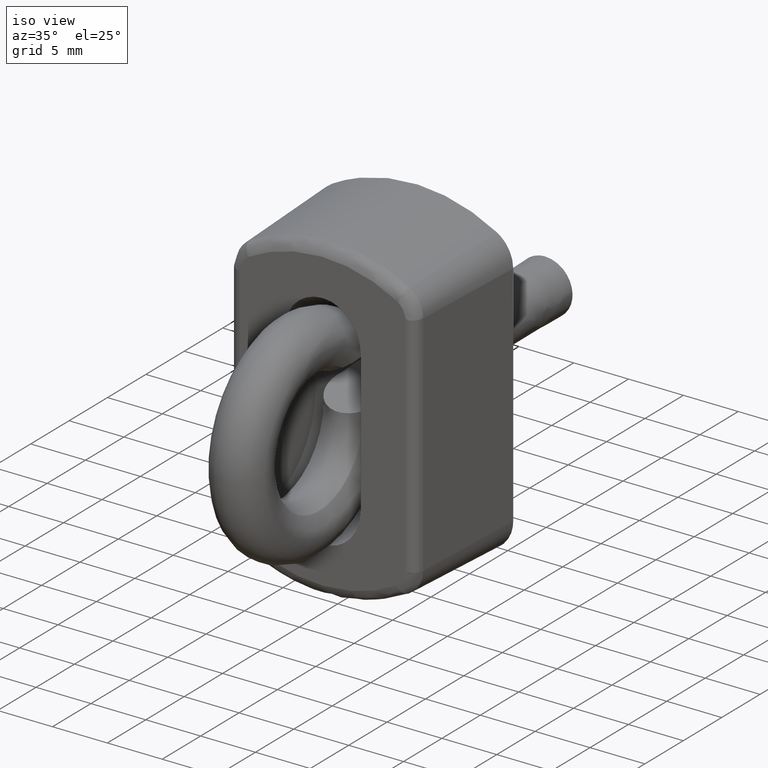
[diagram: clean part render]
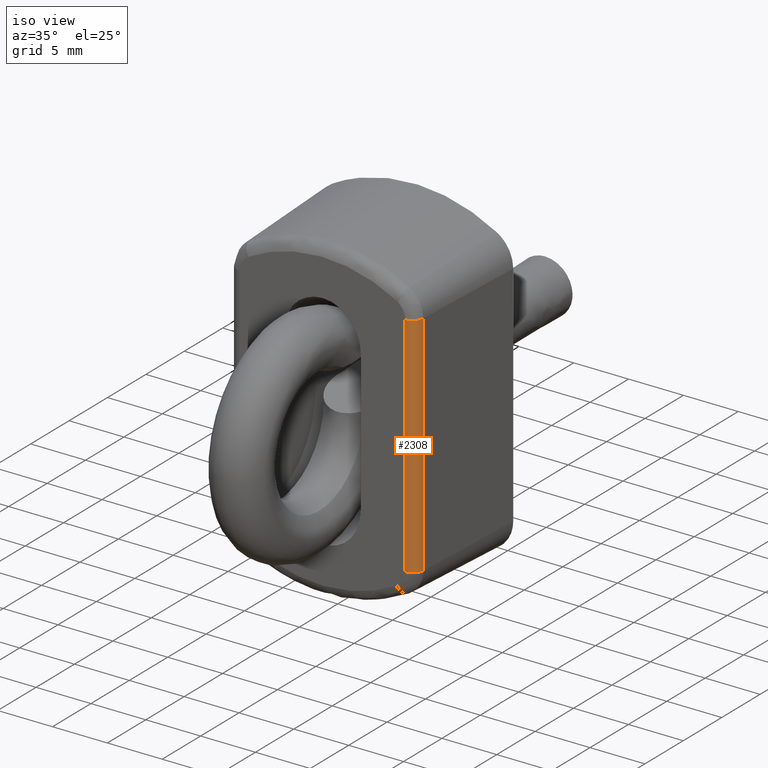
[diagram: same view with one face highlighted and labeled with its STEP entity id]
A machine part, iso view. The second image highlights one B-rep face of the part: STEP entity #2308.
In plain terms, the highlighted face is a freeform B-spline surface patch.
Its self-contained STEP definition (entity closure, byte-faithful):
#2218=CARTESIAN_POINT('',(10.392303999999999,8.539931996033269,-3.958369525570390));
#2219=VERTEX_POINT('',#2218);
#2233=CARTESIAN_POINT('',(10.392303999999999,7.540798920012490,-3.0));
#2234=VERTEX_POINT('',#2233);
#2235=CARTESIAN_POINT('',(10.392303999999999,8.539931996033271,-3.958369525570390));
#2236=CARTESIAN_POINT('',(10.392303999999999,8.499999999999995,-3.0));
#2237=CARTESIAN_POINT('',(10.392303999999999,7.540798920012480,-3.0));
#2245=(BOUNDED_CURVE()B_SPLINE_CURVE(2,(#2235,#2236,#2237),.UNSPECIFIED.,.F.,.U.)CURVE()GEOMETRIC_REPRESENTATION_ITEM()QUASI_UNIFORM_CURVE()RATIONAL_B_SPLINE_CURVE((1.0,0.721675299019445,1.0))REPRESENTATION_ITEM(''));
#2246=EDGE_CURVE('',#2219,#2234,#2245,.T.);
#2264=CARTESIAN_POINT('',(-10.911919200000000,7.532072384514117,-3.000038076935829));
#2265=CARTESIAN_POINT('',(10.924909580000000,7.532072384514117,-3.000038076935829));
#2266=CARTESIAN_POINT('',(-10.911919200000002,8.549641030114842,-2.991157889897652));
#2267=CARTESIAN_POINT('',(10.924909580000001,8.549641030114842,-2.991157889897652));
#2268=CARTESIAN_POINT('',(-10.911919200000000,8.540760843076662,-4.008726535498376));
#2269=CARTESIAN_POINT('',(10.924909580000000,8.540760843076662,-4.008726535498376));
#2277=(BOUNDED_SURFACE()B_SPLINE_SURFACE(1,2,((#2264,#2266,#2268),(#2265,#2267,#2269)),.UNSPECIFIED.,.F.,.F.,.U.)B_SPLINE_SURFACE_WITH_KNOTS((2,2),(3,3),(0.0,21.836828780000008),(0.0,1.0),.UNSPECIFIED.)GEOMETRIC_REPRESENTATION_ITEM()RATIONAL_B_SPLINE_SURFACE(((1.0,0.700909264299851,1.0),(1.0,0.700909264299851,1.0)))REPRESENTATION_ITEM('')SURFACE());
#2278=CARTESIAN_POINT('',(-10.392303999999999,8.539931996033269,-3.958369525570390));
#2279=VERTEX_POINT('',#2278);
#2280=CARTESIAN_POINT('',(-10.392303999999999,7.540798920012490,-3.0));
#2281=VERTEX_POINT('',#2280);
#2282=CARTESIAN_POINT('',(-10.392303999999999,8.539931996033271,-3.958369525570390));
#2283=CARTESIAN_POINT('',(-10.392303999999999,8.499999999999995,-3.0));
#2284=CARTESIAN_POINT('',(-10.392303999999999,7.540798920012480,-3.0));
#2292=(BOUNDED_CURVE()B_SPLINE_CURVE(2,(#2282,#2283,#2284),.UNSPECIFIED.,.F.,.U.)CURVE()GEOMETRIC_REPRESENTATION_ITEM()QUASI_UNIFORM_CURVE()RATIONAL_B_SPLINE_CURVE((1.0,0.721675299019445,1.0))REPRESENTATION_ITEM(''));
#2293=EDGE_CURVE('',#2279,#2281,#2292,.T.);
#2294=ORIENTED_EDGE('',*,*,#2293,.T.);
#2295=CARTESIAN_POINT('',(10.392303999999999,7.540798920012490,-3.0));
#2296=CARTESIAN_POINT('',(-10.392303999999999,7.540798920012490,-3.0));
#2297=QUASI_UNIFORM_CURVE('',1,(#2295,#2296),.UNSPECIFIED.,.F.,.U.);
#2298=EDGE_CURVE('',#2234,#2281,#2297,.T.);
#2299=ORIENTED_EDGE('',*,*,#2298,.F.);
#2300=ORIENTED_EDGE('',*,*,#2246,.F.);
#2301=CARTESIAN_POINT('',(-10.392303999999999,8.539931996033269,-3.958369525570390));
#2302=CARTESIAN_POINT('',(10.392303999999999,8.539931996033269,-3.958369525570390));
#2303=QUASI_UNIFORM_CURVE('',1,(#2301,#2302),.UNSPECIFIED.,.F.,.U.);
#2304=EDGE_CURVE('',#2279,#2219,#2303,.T.);
#2305=ORIENTED_EDGE('',*,*,#2304,.F.);
#2306=EDGE_LOOP('',(#2294,#2299,#2300,#2305));
#2307=FACE_OUTER_BOUND('',#2306,.T.);
#2308=ADVANCED_FACE('',(#2307),#2277,.T.);